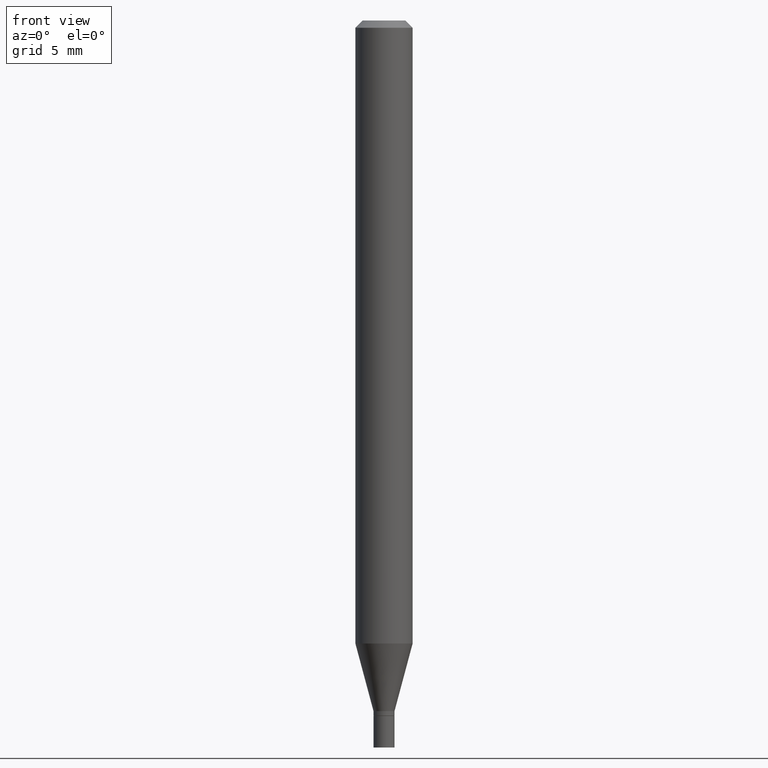
[diagram: clean part render]
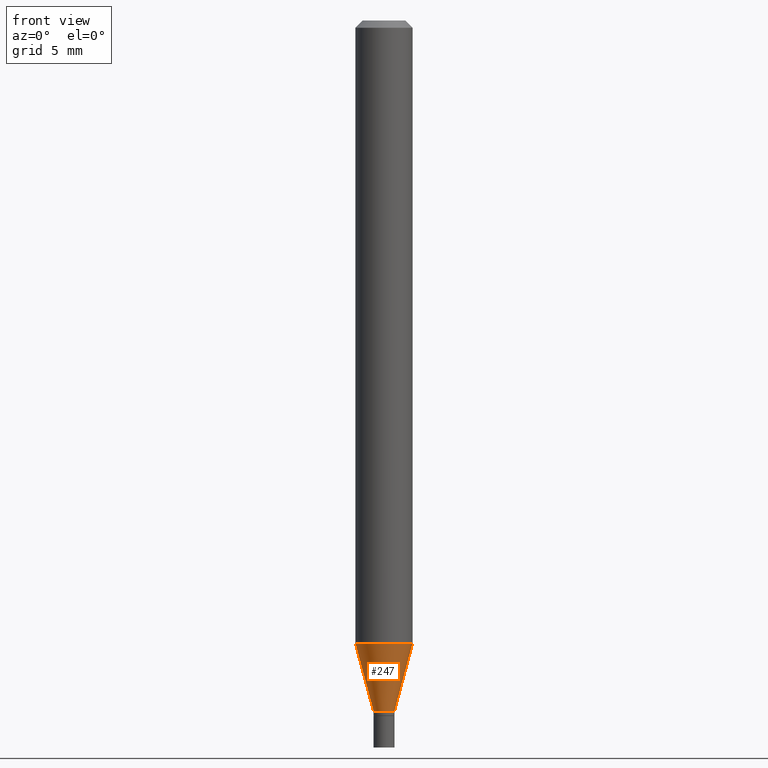
[diagram: same view with one face highlighted and labeled with its STEP entity id]
A machine part, front view. The second image highlights one B-rep face of the part: STEP entity #247.
In plain terms, the highlighted conical surface has half-angle 15 deg.
Its self-contained STEP definition (entity closure, byte-faithful):
#4 = CARTESIAN_POINT ( 'NONE',  ( 0.02164999999999991584, -5.126542049823390117E-15, -1.425000000000000266 ) ) ;
#7 = EDGE_LOOP ( 'NONE', ( #410, #218, #166, #262 ) ) ;
#15 = CARTESIAN_POINT ( 'NONE',  ( 3.143457691459330650E-29, -4.488024480792461155E-15, -1.285421299796924099 ) ) ;
#22 = CARTESIAN_POINT ( 'NONE',  ( -0.02164999999999991584, -4.821528405559422650E-15, -1.425000000000000266 ) ) ;
#38 = LINE ( 'NONE', #423, #225 ) ;
#39 = CARTESIAN_POINT ( 'NONE',  ( -0.02164999999999991584, -4.444988700442772550E-15, -1.425000000000000266 ) ) ;
#53 = CARTESIAN_POINT ( 'NONE',  ( 3.484793048813820547E-29, -4.975360907851483175E-15, -1.425000000000000266 ) ) ;
#90 = CIRCLE ( 'NONE', #331, 0.05904999999999999832 ) ;
#142 = DIRECTION ( 'NONE',  ( -2.445468806185136597E-29, 3.491481338843145583E-15, 1.000000000000000000 ) ) ;
#144 = DIRECTION ( 'NONE',  ( 0.2588190451025212391, 1.565188264969622362E-15, 0.9659258262890679791 ) ) ;
#166 = ORIENTED_EDGE ( 'NONE', *, *, #411, .T. ) ;
#190 = CARTESIAN_POINT ( 'NONE',  ( -0.05904999999999999832, -4.068448995326122451E-15, -1.285421299796924099 ) ) ;
#193 = DIRECTION ( 'NONE',  ( -2.445468806185136597E-29, 3.491481338843145583E-15, 1.000000000000000000 ) ) ;
#213 = AXIS2_PLACEMENT_3D ( 'NONE', #267, #232, #404 ) ;
#214 = EDGE_CURVE ( 'NONE', #322, #451, #312, .T. ) ;
#215 = CARTESIAN_POINT ( 'NONE',  ( 0.05904999999999999832, -4.900368426909834498E-15, -1.285421299796924099 ) ) ;
#218 = ORIENTED_EDGE ( 'NONE', *, *, #214, .T. ) ;
#225 = VECTOR ( 'NONE', #144, 39.37007874015748854 ) ;
#227 = VERTEX_POINT ( 'NONE', #190 ) ;
#232 = DIRECTION ( 'NONE',  ( -2.445468806185136597E-29, 3.491481338843145583E-15, 1.000000000000000000 ) ) ;
#235 = EDGE_CURVE ( 'NONE', #322, #227, #237, .T. ) ;
#237 = LINE ( 'NONE', #22, #374 ) ;
#247 = ADVANCED_FACE ( 'NONE', ( #365 ), #398, .T. ) ;
#258 = EDGE_CURVE ( 'NONE', #227, #364, #90, .T. ) ;
#262 = ORIENTED_EDGE ( 'NONE', *, *, #258, .F. ) ;
#267 = CARTESIAN_POINT ( 'NONE',  ( 3.484793048813820547E-29, -4.975360907851483175E-15, -1.425000000000000266 ) ) ;
#298 = DIRECTION ( 'NONE',  ( 1.000000000000000000, -6.982962677686273021E-15, 0.000000000000000000 ) ) ;
#312 = CIRCLE ( 'NONE', #345, 0.02164999999999991584 ) ;
#322 = VERTEX_POINT ( 'NONE', #39 ) ;
#331 = AXIS2_PLACEMENT_3D ( 'NONE', #15, #142, #298 ) ;
#333 = DIRECTION ( 'NONE',  ( 1.000000000000000000, -6.982962677686250144E-15, 0.000000000000000000 ) ) ;
#345 = AXIS2_PLACEMENT_3D ( 'NONE', #53, #193, #333 ) ;
#364 = VERTEX_POINT ( 'NONE', #215 ) ;
#365 = FACE_OUTER_BOUND ( 'NONE', #7, .T. ) ;
#374 = VECTOR ( 'NONE', #439, 39.37007874015748854 ) ;
#398 = CONICAL_SURFACE ( 'NONE', #213, 0.02164999999999991584, 0.2617993877991499629 ) ;
#404 = DIRECTION ( 'NONE',  ( 1.000000000000000000, -6.982962677686250144E-15, 0.000000000000000000 ) ) ;
#410 = ORIENTED_EDGE ( 'NONE', *, *, #235, .F. ) ;
#411 = EDGE_CURVE ( 'NONE', #451, #364, #38, .T. ) ;
#423 = CARTESIAN_POINT ( 'NONE',  ( 0.02164999999999991584, -5.126542049823390117E-15, -1.425000000000000266 ) ) ;
#439 = DIRECTION ( 'NONE',  ( -0.2588190451025212391, 5.211531920934549464E-15, 0.9659258262890679791 ) ) ;
#451 = VERTEX_POINT ( 'NONE', #4 ) ;